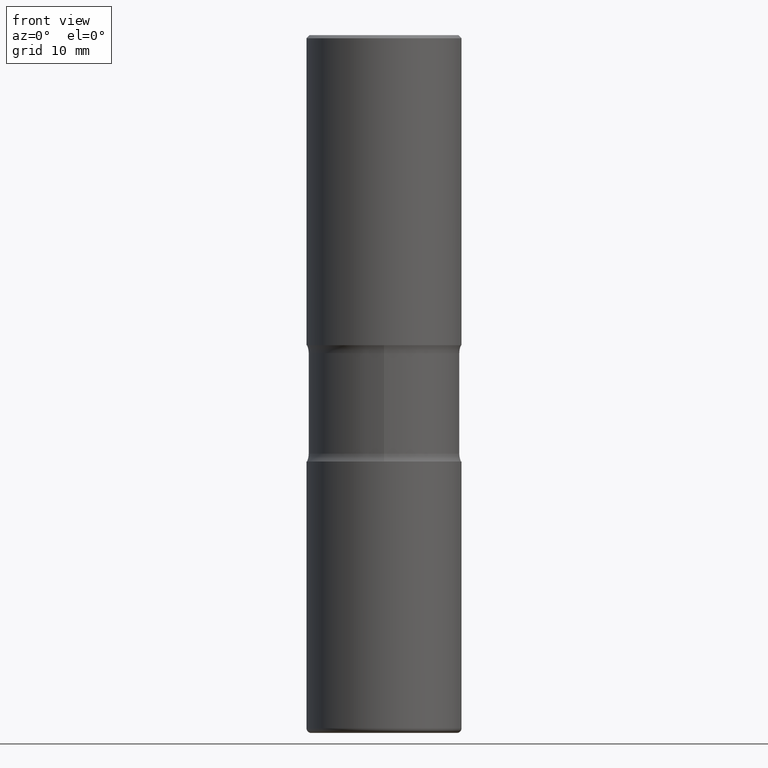
[diagram: clean part render]
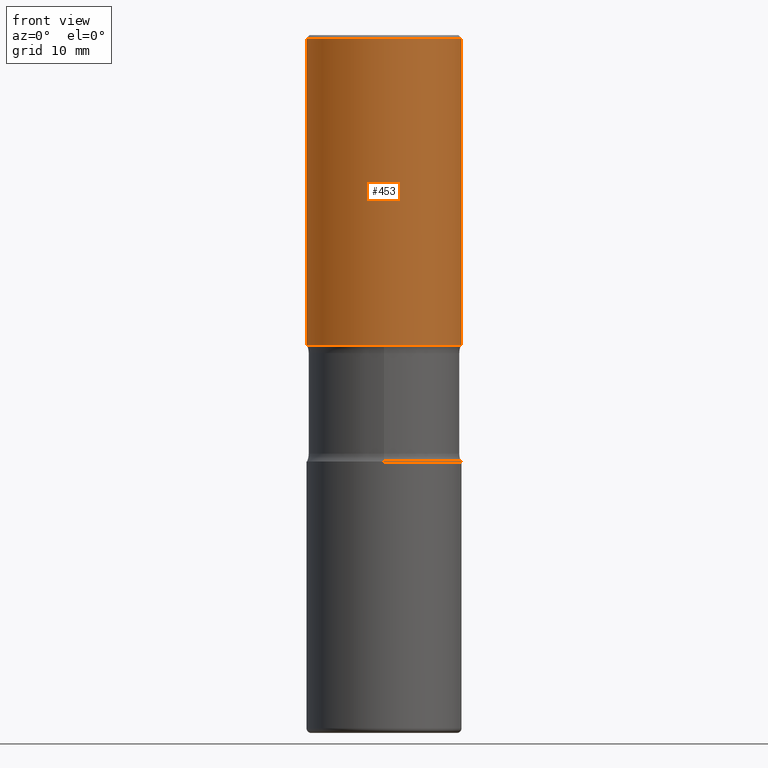
[diagram: same view with one face highlighted and labeled with its STEP entity id]
A machine part, front view. The second image highlights one B-rep face of the part: STEP entity #453.
In plain terms, the highlighted cylindrical surface (partial cylindrical patch) has radius 12.7 mm, axis along (-0, 0, 1).
Its self-contained STEP definition (entity closure, byte-faithful):
#9 = EDGE_CURVE ( 'NONE', #259, #341, #82, .T. ) ;
#15 = AXIS2_PLACEMENT_3D ( 'NONE', #188, #116, #76 ) ;
#19 = DIRECTION ( 'NONE',  ( -2.445468806185136597E-29, 3.491481338843145583E-15, 1.000000000000000000 ) ) ;
#52 = CARTESIAN_POINT ( 'NONE',  ( -0.5000000000000003331, 3.552713678800503296E-15, -2.459467545127454572E-29 ) ) ;
#76 = DIRECTION ( 'NONE',  ( 1.000000000000000000, -6.982962677686266711E-15, 0.000000000000000000 ) ) ;
#82 = CIRCLE ( 'NONE', #449, 0.5000000000000002220 ) ;
#89 = DIRECTION ( 'NONE',  ( -2.445468806185136877E-29, 3.491481338843145188E-15, 1.000000000000000000 ) ) ;
#104 = ORIENTED_EDGE ( 'NONE', *, *, #9, .F. ) ;
#116 = DIRECTION ( 'NONE',  ( -2.445468806185136597E-29, 3.491481338843145583E-15, 1.000000000000000000 ) ) ;
#146 = VERTEX_POINT ( 'NONE', #234 ) ;
#188 = CARTESIAN_POINT ( 'NONE',  ( 4.890937612370274875E-29, -6.982962677686292743E-15, -2.000000000000000444 ) ) ;
#192 = EDGE_CURVE ( 'NONE', #434, #146, #460, .T. ) ;
#234 = CARTESIAN_POINT ( 'NONE',  ( 0.5000000000000004441, -1.047444401652943004E-14, -2.000000000000000444 ) ) ;
#245 = LINE ( 'NONE', #52, #292 ) ;
#259 = VERTEX_POINT ( 'NONE', #545 ) ;
#265 = DIRECTION ( 'NONE',  ( -2.445468806185136877E-29, 3.491481338843145188E-15, 1.000000000000000000 ) ) ;
#281 = EDGE_LOOP ( 'NONE', ( #378, #381, #417, #104 ) ) ;
#292 = VECTOR ( 'NONE', #89, 39.37007874015748143 ) ;
#303 = EDGE_CURVE ( 'NONE', #434, #259, #245, .T. ) ;
#306 = DIRECTION ( 'NONE',  ( -2.445468806185136597E-29, 3.491481338843145583E-15, 1.000000000000000000 ) ) ;
#310 = CARTESIAN_POINT ( 'NONE',  ( 0.000000000000000000, 0.000000000000000000, 0.000000000000000000 ) ) ;
#313 = DIRECTION ( 'NONE',  ( 1.000000000000000000, -6.982962677686267499E-15, 0.000000000000000000 ) ) ;
#316 = FACE_OUTER_BOUND ( 'NONE', #281, .T. ) ;
#340 = VECTOR ( 'NONE', #265, 39.37007874015748143 ) ;
#341 = VERTEX_POINT ( 'NONE', #553 ) ;
#352 = EDGE_CURVE ( 'NONE', #146, #341, #508, .T. ) ;
#363 = DIRECTION ( 'NONE',  ( 1.000000000000000000, -6.982962677686266711E-15, 4.876176775795935793E-29 ) ) ;
#378 = ORIENTED_EDGE ( 'NONE', *, *, #303, .F. ) ;
#381 = ORIENTED_EDGE ( 'NONE', *, *, #192, .T. ) ;
#417 = ORIENTED_EDGE ( 'NONE', *, *, #352, .T. ) ;
#434 = VERTEX_POINT ( 'NONE', #484 ) ;
#444 = CARTESIAN_POINT ( 'NONE',  ( 4.890937612370298557E-31, -6.982962677686327354E-17, -0.02000000000000010103 ) ) ;
#449 = AXIS2_PLACEMENT_3D ( 'NONE', #444, #306, #313 ) ;
#450 = CYLINDRICAL_SURFACE ( 'NONE', #547, 0.5000000000000003331 ) ;
#453 = ADVANCED_FACE ( 'NONE', ( #316 ), #450, .T. ) ;
#460 = CIRCLE ( 'NONE', #15, 0.5000000000000004441 ) ;
#484 = CARTESIAN_POINT ( 'NONE',  ( -0.5000000000000004441, 2.631752656892707803E-17, -2.000000000000000444 ) ) ;
#508 = LINE ( 'NONE', #560, #340 ) ;
#545 = CARTESIAN_POINT ( 'NONE',  ( -0.5000000000000002220, 3.421651712066272029E-15, -0.02000000000000010103 ) ) ;
#547 = AXIS2_PLACEMENT_3D ( 'NONE', #310, #19, #363 ) ;
#553 = CARTESIAN_POINT ( 'NONE',  ( 0.5000000000000002220, -3.500078625662630657E-15, -0.02000000000000010103 ) ) ;
#560 = CARTESIAN_POINT ( 'NONE',  ( 0.5000000000000003331, -3.491481338843135722E-15, 2.438088387897969578E-29 ) ) ;